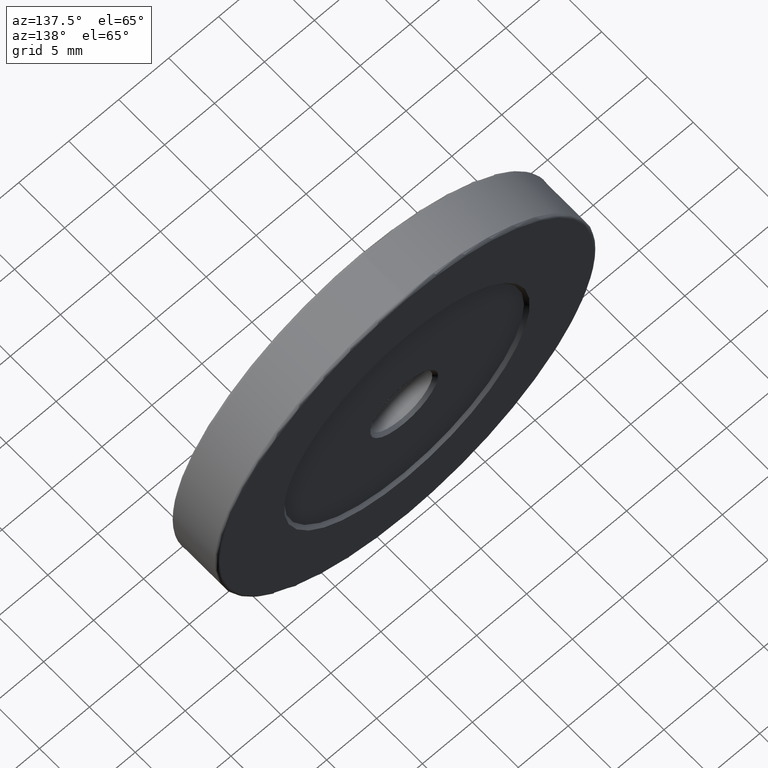
[diagram: clean part render]
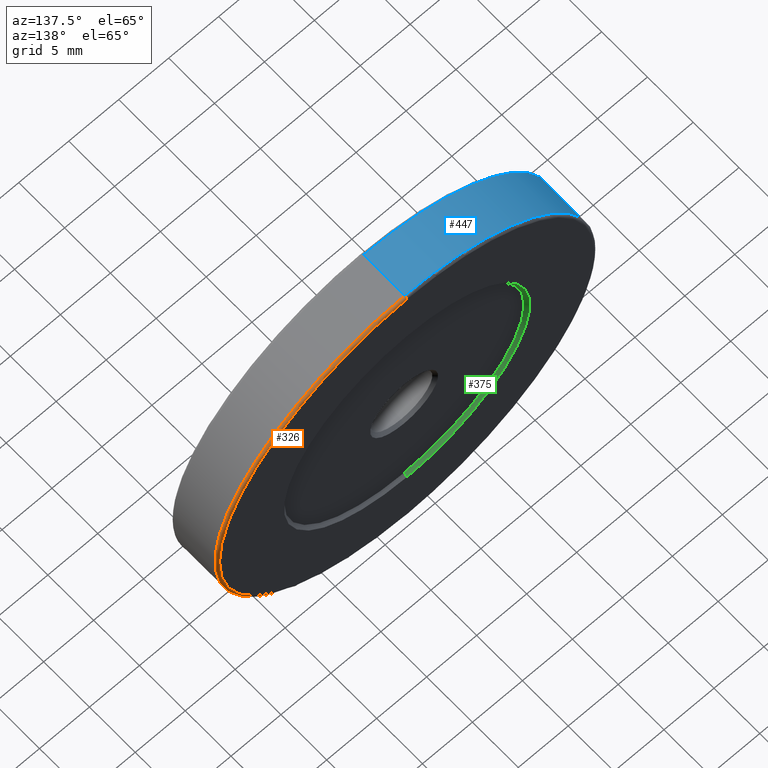
[diagram: same view with three faces highlighted in distinct colors, each labeled with its STEP entity id]
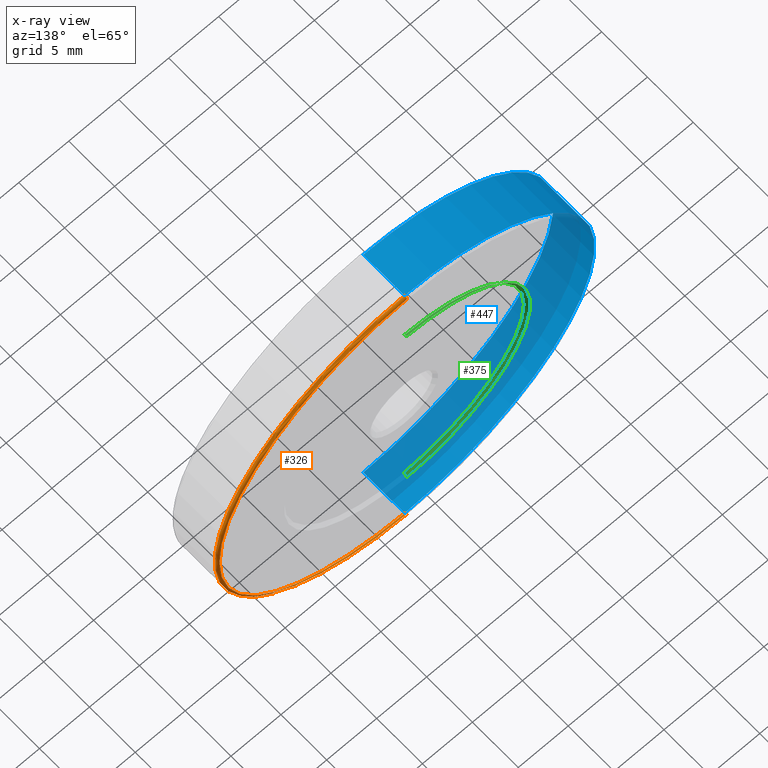
[diagram: x-ray of the same camera — body ghosted, the three highlighted faces saturated]
A machine part, auxiliary view with three faces highlighted in distinct colors.
The next image is the same camera in x-ray (body ghosted, the three faces saturated) — at least one of them is partly hidden behind the body in this view.
Their STEP definitions:

[orange] entity #326 — the highlighted toroidal blend (fillet) surface has major radius 18.75 mm and minor (blend) radius 0.25 mm.
#28 = FACE_OUTER_BOUND ( 'NONE', #483, .T. ) ;
#63 = CARTESIAN_POINT ( 'NONE',  ( -7.546808913101048510, -0.3935951273027278874, 56.74999999999999289 ) ) ;
#80 = ORIENTED_EDGE ( 'NONE', *, *, #232, .F. ) ;
#91 = VERTEX_POINT ( 'NONE', #568 ) ;
#105 = DIRECTION ( 'NONE',  ( 0.000000000000000000, 0.000000000000000000, 1.000000000000000000 ) ) ;
#119 = DIRECTION ( 'NONE',  ( 0.000000000000000000, 0.000000000000000000, 1.000000000000000000 ) ) ;
#137 = DIRECTION ( 'NONE',  ( 1.000000000000000000, -0.000000000000000000, 1.224646799147353207E-16 ) ) ;
#179 = VERTEX_POINT ( 'NONE', #63 ) ;
#187 = CIRCLE ( 'NONE', #380, 18.74999999999999645 ) ;
#189 = CARTESIAN_POINT ( 'NONE',  ( -7.546808913101048510, -0.6435951273027276098, 38.00000000000000000 ) ) ;
#192 = CARTESIAN_POINT ( 'NONE',  ( -7.546808913101044958, -0.6435951273027276098, 19.00000000000000000 ) ) ;
#199 = CARTESIAN_POINT ( 'NONE',  ( -7.546808913101048510, -0.3935951273027278874, 38.00000000000000000 ) ) ;
#220 = CIRCLE ( 'NONE', #562, 0.2500000000000002220 ) ;
#232 = EDGE_CURVE ( 'NONE', #500, #179, #220, .T. ) ;
#248 = DIRECTION ( 'NONE',  ( 0.000000000000000000, 1.000000000000000000, 0.000000000000000000 ) ) ;
#252 = AXIS2_PLACEMENT_3D ( 'NONE', #189, #422, #119 ) ;
#326 = ADVANCED_FACE ( 'NONE', ( #28 ), #454, .T. ) ;
#334 = EDGE_CURVE ( 'NONE', #469, #91, #609, .T. ) ;
#339 = DIRECTION ( 'NONE',  ( 0.000000000000000000, 0.000000000000000000, 1.000000000000000000 ) ) ;
#380 = AXIS2_PLACEMENT_3D ( 'NONE', #199, #248, #339 ) ;
#390 = CIRCLE ( 'NONE', #535, 18.99999999999999645 ) ;
#410 = CARTESIAN_POINT ( 'NONE',  ( -7.546808913101045846, -0.6435951273027276098, 19.25000000000000000 ) ) ;
#422 = DIRECTION ( 'NONE',  ( 0.000000000000000000, 1.000000000000000000, 0.000000000000000000 ) ) ;
#429 = CARTESIAN_POINT ( 'NONE',  ( -7.546808913101048510, -0.6435951273027276098, 56.99999999999999289 ) ) ;
#440 = CARTESIAN_POINT ( 'NONE',  ( -7.546808913101048510, -0.6435951273027276098, 56.74999999999999289 ) ) ;
#443 = DIRECTION ( 'NONE',  ( -0.000000000000000000, -1.000000000000000000, -0.000000000000000000 ) ) ;
#451 = ORIENTED_EDGE ( 'NONE', *, *, #460, .F. ) ;
#454 = TOROIDAL_SURFACE ( 'NONE', #252, 18.75000000000000000, 0.2500000000000000000 ) ;
#456 = CARTESIAN_POINT ( 'NONE',  ( -7.546808913101048510, -0.6435951273027276098, 38.00000000000000000 ) ) ;
#460 = EDGE_CURVE ( 'NONE', #179, #91, #187, .T. ) ;
#461 = ORIENTED_EDGE ( 'NONE', *, *, #334, .T. ) ;
#469 = VERTEX_POINT ( 'NONE', #192 ) ;
#476 = ORIENTED_EDGE ( 'NONE', *, *, #576, .F. ) ;
#483 = EDGE_LOOP ( 'NONE', ( #476, #461, #451, #80 ) ) ;
#496 = DIRECTION ( 'NONE',  ( 0.000000000000000000, 0.000000000000000000, 1.000000000000000000 ) ) ;
#500 = VERTEX_POINT ( 'NONE', #429 ) ;
#535 = AXIS2_PLACEMENT_3D ( 'NONE', #456, #443, #496 ) ;
#536 = DIRECTION ( 'NONE',  ( -1.000000000000000000, 0.000000000000000000, 0.000000000000000000 ) ) ;
#562 = AXIS2_PLACEMENT_3D ( 'NONE', #440, #536, #105 ) ;
#568 = CARTESIAN_POINT ( 'NONE',  ( -7.546808913101045846, -0.3935951273027278874, 19.25000000000000000 ) ) ;
#576 = EDGE_CURVE ( 'NONE', #469, #500, #390, .T. ) ;
#584 = AXIS2_PLACEMENT_3D ( 'NONE', #410, #137, #596 ) ;
#596 = DIRECTION ( 'NONE',  ( 0.000000000000000000, 0.000000000000000000, -1.000000000000000000 ) ) ;
#609 = CIRCLE ( 'NONE', #584, 0.2500000000000002220 ) ;

[blue] entity #447 — the highlighted cylindrical surface (partial cylindrical patch) has radius 19 mm, axis along (-0, -1, -0).
#8 = DIRECTION ( 'NONE',  ( 0.000000000000000000, 0.000000000000000000, -1.000000000000000000 ) ) ;
#9 = ORIENTED_EDGE ( 'NONE', *, *, #207, .T. ) ;
#51 = DIRECTION ( 'NONE',  ( 0.000000000000000000, 1.000000000000000000, 0.000000000000000000 ) ) ;
#55 = CYLINDRICAL_SURFACE ( 'NONE', #165, 19.00000000000000000 ) ;
#61 = ORIENTED_EDGE ( 'NONE', *, *, #518, .F. ) ;
#83 = ORIENTED_EDGE ( 'NONE', *, *, #117, .T. ) ;
#86 = AXIS2_PLACEMENT_3D ( 'NONE', #101, #402, #400 ) ;
#95 = ORIENTED_EDGE ( 'NONE', *, *, #552, .T. ) ;
#96 = CARTESIAN_POINT ( 'NONE',  ( -7.546808913101048510, -5.143595127302727832, 38.00000000000000000 ) ) ;
#101 = CARTESIAN_POINT ( 'NONE',  ( -7.546808913101048510, -0.6435951273027276098, 38.00000000000000000 ) ) ;
#117 = EDGE_CURVE ( 'NONE', #500, #469, #453, .T. ) ;
#152 = DIRECTION ( 'NONE',  ( -0.000000000000000000, -1.000000000000000000, -0.000000000000000000 ) ) ;
#165 = AXIS2_PLACEMENT_3D ( 'NONE', #245, #398, #8 ) ;
#184 = VERTEX_POINT ( 'NONE', #347 ) ;
#192 = CARTESIAN_POINT ( 'NONE',  ( -7.546808913101044958, -0.6435951273027276098, 19.00000000000000000 ) ) ;
#194 = FACE_OUTER_BOUND ( 'NONE', #607, .T. ) ;
#197 = VECTOR ( 'NONE', #152, 1000.000000000000000 ) ;
#204 = CARTESIAN_POINT ( 'NONE',  ( -7.546808913101048510, -0.3935951273027278874, 19.00000000000000000 ) ) ;
#207 = EDGE_CURVE ( 'NONE', #469, #249, #480, .T. ) ;
#245 = CARTESIAN_POINT ( 'NONE',  ( -7.546808913101048510, -0.3935951273027278874, 38.00000000000000000 ) ) ;
#249 = VERTEX_POINT ( 'NONE', #554 ) ;
#271 = VECTOR ( 'NONE', #404, 1000.000000000000000 ) ;
#289 = CARTESIAN_POINT ( 'NONE',  ( -7.546808913101045846, -0.3935951273027278874, 56.99999999999999289 ) ) ;
#330 = AXIS2_PLACEMENT_3D ( 'NONE', #96, #51, #470 ) ;
#347 = CARTESIAN_POINT ( 'NONE',  ( -7.546808913101045846, -5.143595127302727832, 56.99999999999999289 ) ) ;
#395 = LINE ( 'NONE', #289, #197 ) ;
#398 = DIRECTION ( 'NONE',  ( -0.000000000000000000, -1.000000000000000000, -0.000000000000000000 ) ) ;
#400 = DIRECTION ( 'NONE',  ( 0.000000000000000000, 0.000000000000000000, 1.000000000000000000 ) ) ;
#402 = DIRECTION ( 'NONE',  ( -0.000000000000000000, -1.000000000000000000, -0.000000000000000000 ) ) ;
#404 = DIRECTION ( 'NONE',  ( -0.000000000000000000, -1.000000000000000000, -0.000000000000000000 ) ) ;
#429 = CARTESIAN_POINT ( 'NONE',  ( -7.546808913101048510, -0.6435951273027276098, 56.99999999999999289 ) ) ;
#447 = ADVANCED_FACE ( 'NONE', ( #194 ), #55, .T. ) ;
#453 = CIRCLE ( 'NONE', #86, 18.99999999999999645 ) ;
#469 = VERTEX_POINT ( 'NONE', #192 ) ;
#470 = DIRECTION ( 'NONE',  ( 0.000000000000000000, 0.000000000000000000, 1.000000000000000000 ) ) ;
#480 = LINE ( 'NONE', #204, #271 ) ;
#491 = CIRCLE ( 'NONE', #330, 18.99999999999999645 ) ;
#500 = VERTEX_POINT ( 'NONE', #429 ) ;
#518 = EDGE_CURVE ( 'NONE', #500, #184, #395, .T. ) ;
#552 = EDGE_CURVE ( 'NONE', #249, #184, #491, .T. ) ;
#554 = CARTESIAN_POINT ( 'NONE',  ( -7.546808913101048510, -5.143595127302727832, 19.00000000000000000 ) ) ;
#607 = EDGE_LOOP ( 'NONE', ( #61, #83, #9, #95 ) ) ;

[green] entity #375 — the highlighted conical surface has half-angle 45 deg.
#12 = CARTESIAN_POINT ( 'NONE',  ( -7.546808913101046734, -0.6935951273027277653, 25.99999999999999645 ) ) ;
#29 = CONICAL_SURFACE ( 'NONE', #230, 12.00000000000000355, 0.7853981633974482790 ) ;
#44 = EDGE_LOOP ( 'NONE', ( #325, #553, #508, #97 ) ) ;
#57 = LINE ( 'NONE', #270, #503 ) ;
#73 = LINE ( 'NONE', #269, #113 ) ;
#78 = CARTESIAN_POINT ( 'NONE',  ( -7.546808913101046734, -0.3935951273027278874, 25.70000000000001705 ) ) ;
#90 = CARTESIAN_POINT ( 'NONE',  ( -7.546808913101048510, -0.6935951273027052277, 38.00000000000000000 ) ) ;
#94 = DIRECTION ( 'NONE',  ( 0.000000000000000000, 0.000000000000000000, 1.000000000000000000 ) ) ;
#97 = ORIENTED_EDGE ( 'NONE', *, *, #364, .F. ) ;
#110 = EDGE_CURVE ( 'NONE', #170, #195, #382, .T. ) ;
#113 = VECTOR ( 'NONE', #239, 1000.000000000000114 ) ;
#121 = FACE_OUTER_BOUND ( 'NONE', #44, .T. ) ;
#125 = AXIS2_PLACEMENT_3D ( 'NONE', #427, #523, #94 ) ;
#170 = VERTEX_POINT ( 'NONE', #12 ) ;
#195 = VERTEX_POINT ( 'NONE', #214 ) ;
#196 = DIRECTION ( 'NONE',  ( 0.000000000000000000, 0.000000000000000000, 1.000000000000000000 ) ) ;
#214 = CARTESIAN_POINT ( 'NONE',  ( -7.546808913101048510, -0.6935951273027277653, 50.00000000000000000 ) ) ;
#230 = AXIS2_PLACEMENT_3D ( 'NONE', #90, #452, #317 ) ;
#239 = DIRECTION ( 'NONE',  ( 0.000000000000000000, 0.7071067811865474617, 0.7071067811865474617 ) ) ;
#247 = DIRECTION ( 'NONE',  ( 0.000000000000000000, 1.000000000000000000, 0.000000000000000000 ) ) ;
#265 = DIRECTION ( 'NONE',  ( 8.659560562354932858E-17, 0.7071067811865474617, -0.7071067811865474617 ) ) ;
#269 = CARTESIAN_POINT ( 'NONE',  ( -7.546808913101048510, -0.6935951273027052277, 50.00000000000000000 ) ) ;
#270 = CARTESIAN_POINT ( 'NONE',  ( -7.546808913101046734, -0.6935951273027052277, 25.99999999999999645 ) ) ;
#317 = DIRECTION ( 'NONE',  ( 0.000000000000000000, 0.000000000000000000, 1.000000000000000000 ) ) ;
#325 = ORIENTED_EDGE ( 'NONE', *, *, #110, .F. ) ;
#346 = CARTESIAN_POINT ( 'NONE',  ( -7.546808913101048510, -0.3935951273027278874, 50.29999999999998295 ) ) ;
#363 = AXIS2_PLACEMENT_3D ( 'NONE', #525, #247, #196 ) ;
#364 = EDGE_CURVE ( 'NONE', #195, #423, #73, .T. ) ;
#375 = ADVANCED_FACE ( 'NONE', ( #121 ), #29, .F. ) ;
#376 = VERTEX_POINT ( 'NONE', #78 ) ;
#382 = CIRCLE ( 'NONE', #363, 12.00000000000000355 ) ;
#414 = CIRCLE ( 'NONE', #125, 12.29999999999997762 ) ;
#423 = VERTEX_POINT ( 'NONE', #346 ) ;
#427 = CARTESIAN_POINT ( 'NONE',  ( -7.546808913101048510, -0.3935951273027278874, 38.00000000000000000 ) ) ;
#452 = DIRECTION ( 'NONE',  ( 0.000000000000000000, 1.000000000000000000, 0.000000000000000000 ) ) ;
#484 = EDGE_CURVE ( 'NONE', #423, #376, #414, .T. ) ;
#503 = VECTOR ( 'NONE', #265, 1000.000000000000114 ) ;
#508 = ORIENTED_EDGE ( 'NONE', *, *, #484, .F. ) ;
#523 = DIRECTION ( 'NONE',  ( -0.000000000000000000, -1.000000000000000000, -0.000000000000000000 ) ) ;
#525 = CARTESIAN_POINT ( 'NONE',  ( -7.546808913101048510, -0.6935951273027277653, 38.00000000000000000 ) ) ;
#553 = ORIENTED_EDGE ( 'NONE', *, *, #569, .T. ) ;
#569 = EDGE_CURVE ( 'NONE', #170, #376, #57, .T. ) ;